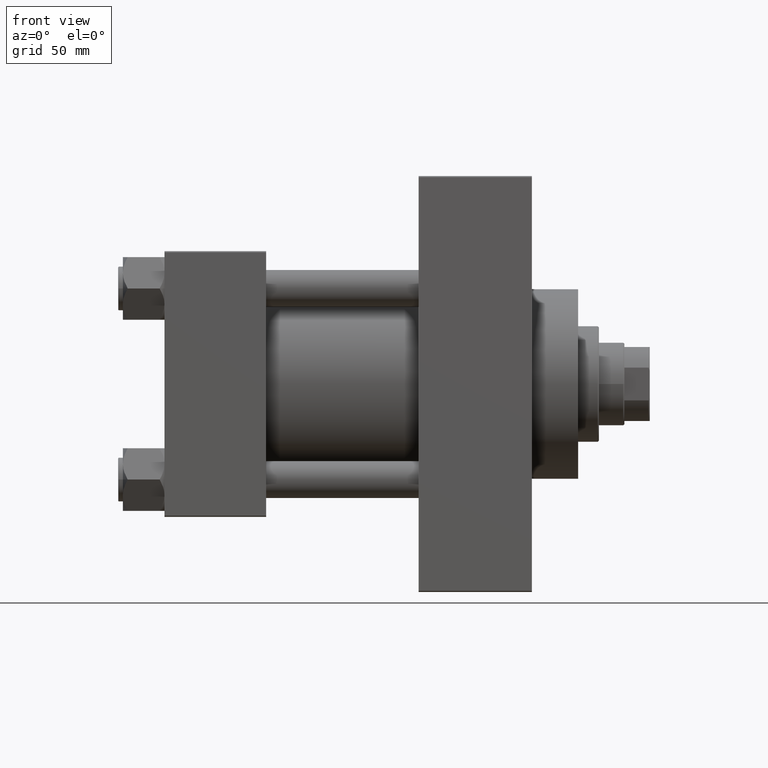
[diagram: clean part render]
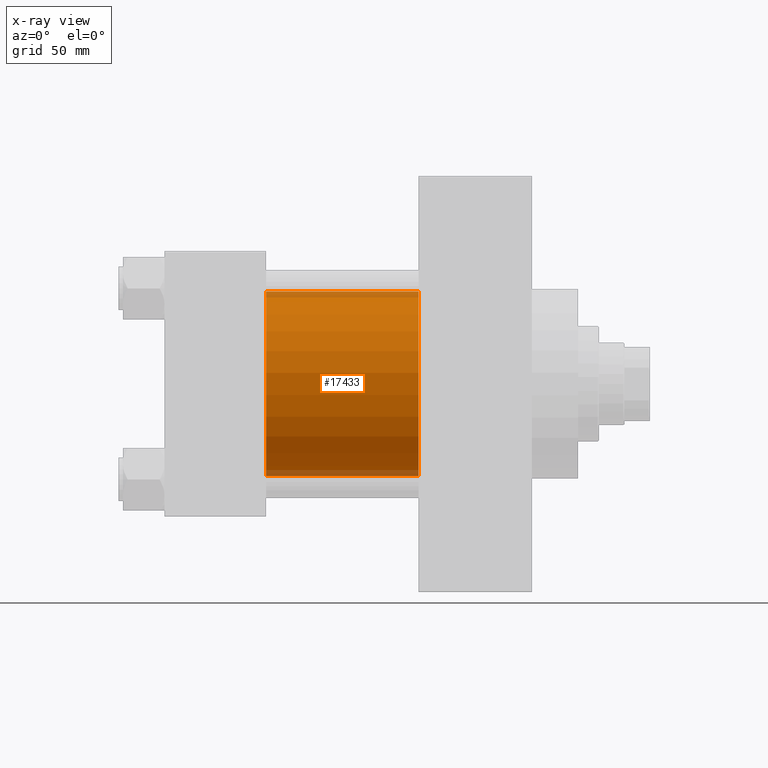
[diagram: x-ray — body ghosted, one internal face saturated and labeled with its STEP entity id]
A machine part, front view, then the same camera in x-ray: the body is ghosted and one INTERNAL B-rep face — a face not visible from any outside direction — is saturated and labeled: STEP entity #17433.
In plain terms, the highlighted cylindrical surface (partial cylindrical patch) has radius 40 mm, axis along (-1, -0, -0).
Its self-contained STEP definition (entity closure, byte-faithful):
#2090 = CARTESIAN_POINT ( 'NONE',  ( 110.0000000000000000, -2.602085213965210642E-15, 0.000000000000000000 ) ) ;
#2693 = CARTESIAN_POINT ( 'NONE',  ( 44.00000000000000000, -2.602085213965210642E-15, 0.000000000000000000 ) ) ;
#3236 = DIRECTION ( 'NONE',  ( -1.000000000000000000, -0.000000000000000000, -0.000000000000000000 ) ) ;
#6364 = CARTESIAN_POINT ( 'NONE',  ( 110.0000000000000000, -2.602085213965210642E-15, 40.00000000000000000 ) ) ;
#7600 = CYLINDRICAL_SURFACE ( 'NONE', #33704, 40.00000000000000000 ) ;
#9852 = CARTESIAN_POINT ( 'NONE',  ( 44.00000000000000000, -2.602085213965210642E-15, 40.00000000000000000 ) ) ;
#11156 = AXIS2_PLACEMENT_3D ( 'NONE', #2693, #48170, #13640 ) ;
#11613 = VECTOR ( 'NONE', #3236, 1000.000000000000000 ) ;
#11835 = ORIENTED_EDGE ( 'NONE', *, *, #24293, .T. ) ;
#11948 = CIRCLE ( 'NONE', #11156, 40.00000000000000000 ) ;
#12502 = CARTESIAN_POINT ( 'NONE',  ( 44.00000000000000000, 2.296501982624201990E-15, -40.00000000000000000 ) ) ;
#13640 = DIRECTION ( 'NONE',  ( 0.000000000000000000, 0.000000000000000000, -1.000000000000000000 ) ) ;
#15888 = VERTEX_POINT ( 'NONE', #36839 ) ;
#17433 = ADVANCED_FACE ( 'NONE', ( #30224 ), #7600, .F. ) ;
#17917 = LINE ( 'NONE', #37288, #11613 ) ;
#19085 = VERTEX_POINT ( 'NONE', #12502 ) ;
#22269 = AXIS2_PLACEMENT_3D ( 'NONE', #2090, #31919, #47066 ) ;
#22471 = LINE ( 'NONE', #37364, #44207 ) ;
#23630 = EDGE_CURVE ( 'NONE', #46056, #19085, #11948, .T. ) ;
#24293 = EDGE_CURVE ( 'NONE', #41164, #15888, #43778, .T. ) ;
#29235 = ORIENTED_EDGE ( 'NONE', *, *, #40990, .F. ) ;
#29933 = DIRECTION ( 'NONE',  ( -1.000000000000000000, -0.000000000000000000, -0.000000000000000000 ) ) ;
#30014 = ORIENTED_EDGE ( 'NONE', *, *, #42766, .T. ) ;
#30224 = FACE_OUTER_BOUND ( 'NONE', #47972, .T. ) ;
#31919 = DIRECTION ( 'NONE',  ( 1.000000000000000000, 0.000000000000000000, 0.000000000000000000 ) ) ;
#32942 = ORIENTED_EDGE ( 'NONE', *, *, #23630, .F. ) ;
#33704 = AXIS2_PLACEMENT_3D ( 'NONE', #34434, #48848, #42125 ) ;
#34434 = CARTESIAN_POINT ( 'NONE',  ( 110.0000000000000000, -2.602085213965210642E-15, 0.000000000000000000 ) ) ;
#36839 = CARTESIAN_POINT ( 'NONE',  ( 110.0000000000000000, 2.296501982624201990E-15, -40.00000000000000000 ) ) ;
#37288 = CARTESIAN_POINT ( 'NONE',  ( 110.0000000000000000, -2.602085213965210642E-15, 40.00000000000000000 ) ) ;
#37364 = CARTESIAN_POINT ( 'NONE',  ( 110.0000000000000000, 2.296501982624201990E-15, -40.00000000000000000 ) ) ;
#40990 = EDGE_CURVE ( 'NONE', #41164, #46056, #17917, .T. ) ;
#41164 = VERTEX_POINT ( 'NONE', #6364 ) ;
#42125 = DIRECTION ( 'NONE',  ( 0.000000000000000000, 0.000000000000000000, 1.000000000000000000 ) ) ;
#42766 = EDGE_CURVE ( 'NONE', #15888, #19085, #22471, .T. ) ;
#43778 = CIRCLE ( 'NONE', #22269, 40.00000000000000000 ) ;
#44207 = VECTOR ( 'NONE', #29933, 1000.000000000000000 ) ;
#46056 = VERTEX_POINT ( 'NONE', #9852 ) ;
#47066 = DIRECTION ( 'NONE',  ( 0.000000000000000000, 0.000000000000000000, -1.000000000000000000 ) ) ;
#47972 = EDGE_LOOP ( 'NONE', ( #11835, #30014, #32942, #29235 ) ) ;
#48170 = DIRECTION ( 'NONE',  ( 1.000000000000000000, 0.000000000000000000, 0.000000000000000000 ) ) ;
#48848 = DIRECTION ( 'NONE',  ( -1.000000000000000000, -0.000000000000000000, -0.000000000000000000 ) ) ;